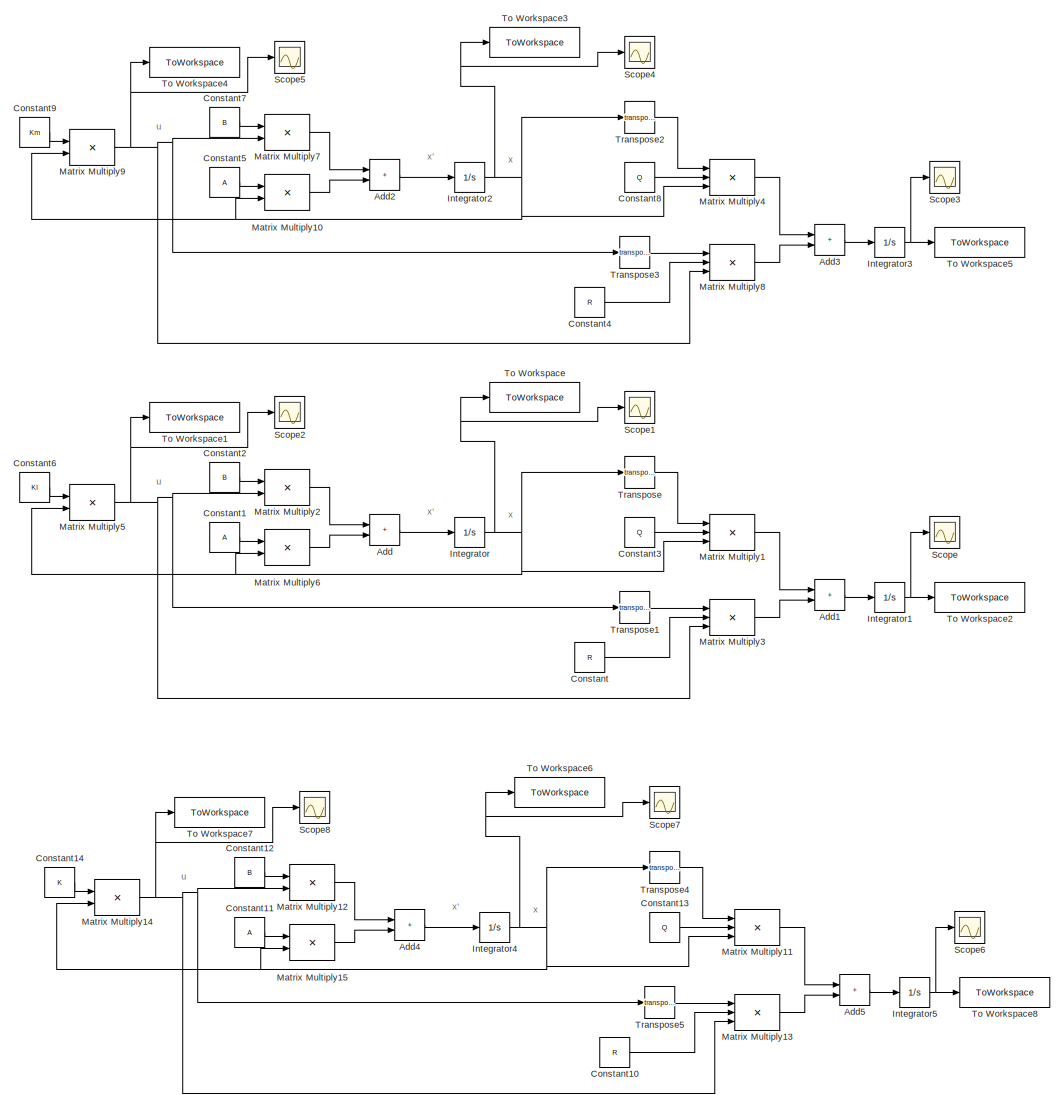
[diagram: root canvas - part 1/1, most of the canvas]
MODEL slx_1d7959213fd1
KIND model
CONFIG AbsTol = auto
CONFIG EnableMultiTasking = off
CONFIG FixedStep = 0.01
CONFIG MaxStep = auto
CONFIG MinStep = auto
CONFIG RelTol = 1e-3
CONFIG SampleTimeConstraint = Unconstrained
CONFIG SolverName = FixedStepAuto
CONFIG StartTime = 0.0
CONFIG StopTime = 10
BLOCK [Sum] Add
  IconShape = rectangular
BLOCK [Sum] Add1
  IconShape = rectangular
BLOCK [Sum] Add2
  IconShape = rectangular
BLOCK [Sum] Add3
  IconShape = rectangular
BLOCK [Sum] Add4
  IconShape = rectangular
BLOCK [Sum] Add5
  IconShape = rectangular
BLOCK [Constant] Constant
  Value = R
  VectorParams1D = off
BLOCK [Constant] Constant1
  Value = A
BLOCK [Constant] Constant10
  Value = R
  VectorParams1D = off
BLOCK [Constant] Constant11
  Value = A
BLOCK [Constant] Constant12
  Value = B
BLOCK [Constant] Constant13
  Value = Q
  VectorParams1D = off
BLOCK [Constant] Constant14
  Value = K
  VectorParams1D = off
BLOCK [Constant] Constant2
  Value = B
BLOCK [Constant] Constant3
  Value = Q
  VectorParams1D = off
BLOCK [Constant] Constant4
  Value = R
  VectorParams1D = off
BLOCK [Constant] Constant5
  Value = A
BLOCK [Constant] Constant6
  Value = Kl
  VectorParams1D = off
BLOCK [Constant] Constant7
  Value = B
BLOCK [Constant] Constant8
  Value = Q
  VectorParams1D = off
BLOCK [Constant] Constant9
  Value = Km
  VectorParams1D = off
BLOCK [Integrator] Integrator
  IgnoreLimit = on
  InitialCondition = x0
BLOCK [Integrator] Integrator1
BLOCK [Integrator] Integrator2
  IgnoreLimit = on
  InitialCondition = x0
BLOCK [Integrator] Integrator3
BLOCK [Integrator] Integrator4
  IgnoreLimit = on
  InitialCondition = x0
BLOCK [Integrator] Integrator5
BLOCK [Product] Matrix Multiply1
  Inputs = 3
  Multiplication = Matrix(*)
BLOCK [Product] Matrix Multiply10
  Multiplication = Matrix(*)
BLOCK [Product] Matrix Multiply11
  Inputs = 3
  Multiplication = Matrix(*)
BLOCK [Product] Matrix Multiply12
  Multiplication = Matrix(*)
BLOCK [Product] Matrix Multiply13
  Inputs = 3
  Multiplication = Matrix(*)
BLOCK [Product] Matrix Multiply14
  Multiplication = Matrix(*)
BLOCK [Product] Matrix Multiply15
  Multiplication = Matrix(*)
BLOCK [Product] Matrix Multiply2
  Multiplication = Matrix(*)
BLOCK [Product] Matrix Multiply3
  Inputs = 3
  Multiplication = Matrix(*)
BLOCK [Product] Matrix Multiply4
  Inputs = 3
  Multiplication = Matrix(*)
BLOCK [Product] Matrix Multiply5
  Multiplication = Matrix(*)
BLOCK [Product] Matrix Multiply6
  Multiplication = Matrix(*)
BLOCK [Product] Matrix Multiply7
  Multiplication = Matrix(*)
BLOCK [Product] Matrix Multiply8
  Inputs = 3
  Multiplication = Matrix(*)
BLOCK [Product] Matrix Multiply9
  Multiplication = Matrix(*)
BLOCK [Scope] Scope
  Floating = off
  NumInputPorts = 1
  ScopeSpecificationString = Simulink.scopes.TimeScopeBlockCfg('CurrentConfiguration', extmgr.ConfigurationSet(extmgr.Configuration('Core','General UI',true),extmgr.Configuration('Core','Source UI',true),extmgr.Configuration('Sources','WiredSimulink',true),extmgr.Configuration('Visuals','Time Domain',true,'SerializedDisplays',{struct('MinYLimReal','-1633.75865','MaxYLimReal','14703.82786','YLabelReal','','MinYLimMag','  0.000...<+1401ch>
BLOCK [Scope] Scope1
  Floating = off
  NumInputPorts = 1
  ScopeSpecificationString = Simulink.scopes.TimeScopeBlockCfg('CurrentConfiguration', extmgr.ConfigurationSet(extmgr.Configuration('Core','General UI',true),extmgr.Configuration('Core','Source UI',true),extmgr.Configuration('Sources','WiredSimulink',true,'DataLoggingVariableName','ScopeData1'),extmgr.Configuration('Visuals','Time Domain',true,'SerializedDisplays',{struct('MinYLimReal','-22.70667','MaxYLimReal','49.73672','YL...<+1447ch>
BLOCK [Scope] Scope2
  Floating = off
  NumInputPorts = 1
  ScopeSpecificationString = Simulink.scopes.TimeScopeBlockCfg('CurrentConfiguration', extmgr.ConfigurationSet(extmgr.Configuration('Core','General UI',true),extmgr.Configuration('Core','Source UI',true),extmgr.Configuration('Sources','WiredSimulink',true,'DataLoggingVariableName','ScopeData2'),extmgr.Configuration('Visuals','Time Domain',true,'SerializedDisplays',{struct('MinYLimReal','-99.42735','MaxYLimReal','272.25747','Y...<+1408ch>
BLOCK [Scope] Scope3
  Floating = off
  NumInputPorts = 1
  ScopeSpecificationString = Simulink.scopes.TimeScopeBlockCfg('CurrentConfiguration', extmgr.ConfigurationSet(extmgr.Configuration('Core','General UI',true),extmgr.Configuration('Core','Source UI',true),extmgr.Configuration('Sources','WiredSimulink',true,'DataLoggingVariableName','ScopeData3'),extmgr.Configuration('Visuals','Time Domain',true,'SerializedDisplays',{struct('MinYLimReal','-3902.68151','MaxYLimReal','35124.13362...<+1440ch>
BLOCK [Scope] Scope4
  Floating = off
  NumInputPorts = 1
  ScopeSpecificationString = Simulink.scopes.TimeScopeBlockCfg('CurrentConfiguration', extmgr.ConfigurationSet(extmgr.Configuration('Core','General UI',true),extmgr.Configuration('Core','Source UI',true),extmgr.Configuration('Sources','WiredSimulink',true,'DataLoggingVariableName','ScopeData4'),extmgr.Configuration('Visuals','Time Domain',true,'SerializedDisplays',{struct('MinYLimReal','-28.00482','MaxYLimReal','54.44058','YL...<+1451ch>
BLOCK [Scope] Scope5
  Floating = off
  NumInputPorts = 1
  ScopeSpecificationString = Simulink.scopes.TimeScopeBlockCfg('CurrentConfiguration', extmgr.ConfigurationSet(extmgr.Configuration('Core','General UI',true),extmgr.Configuration('Core','Source UI',true),extmgr.Configuration('Sources','WiredSimulink',true,'DataLoggingVariableName','ScopeData5'),extmgr.Configuration('Visuals','Time Domain',true,'SerializedDisplays',{struct('MinYLimReal','-156.56957','MaxYLimReal','537.10032','...<+1412ch>
BLOCK [Scope] Scope6
  Floating = off
  NumInputPorts = 1
  ScopeSpecificationString = Simulink.scopes.TimeScopeBlockCfg('CurrentConfiguration', extmgr.ConfigurationSet(extmgr.Configuration('Core','General UI',true),extmgr.Configuration('Core','Source UI',true),extmgr.Configuration('Sources','WiredSimulink',true,'DataLoggingVariableName','ScopeData6'),extmgr.Configuration('Visuals','Time Domain',true,'SerializedDisplays',{struct('MinYLimReal','-185.55268','MaxYLimReal','1669.97411',...<+1432ch>
BLOCK [Scope] Scope7
  Floating = off
  NumInputPorts = 1
  ScopeSpecificationString = Simulink.scopes.TimeScopeBlockCfg('CurrentConfiguration', extmgr.ConfigurationSet(extmgr.Configuration('Core','General UI',true),extmgr.Configuration('Core','Source UI',true),extmgr.Configuration('Sources','WiredSimulink',true,'DataLoggingVariableName','ScopeData7'),extmgr.Configuration('Visuals','Time Domain',true,'SerializedDisplays',{struct('MinYLimReal','-7.16643','MaxYLimReal','7.48885','YLab...<+1445ch>
BLOCK [Scope] Scope8
  Floating = off
  NumInputPorts = 1
  ScopeSpecificationString = Simulink.scopes.TimeScopeBlockCfg('CurrentConfiguration', extmgr.ConfigurationSet(extmgr.Configuration('Core','General UI',true),extmgr.Configuration('Core','Source UI',true),extmgr.Configuration('Sources','WiredSimulink',true,'DataLoggingVariableName','ScopeData8'),extmgr.Configuration('Visuals','Time Domain',true,'SerializedDisplays',{struct('MinYLimReal','-8.03678','MaxYLimReal','2.01188','YLab...<+1400ch>
BLOCK [ToWorkspace] To Workspace
  FixptAsFi = on
  MaxDataPoints = inf
  SampleTime = -1
  SaveFormat = Timeseries
  VariableName = xl
BLOCK [ToWorkspace] To Workspace1
  FixptAsFi = on
  MaxDataPoints = inf
  SampleTime = -1
  SaveFormat = Timeseries
  VariableName = ul
BLOCK [ToWorkspace] To Workspace2
  FixptAsFi = on
  MaxDataPoints = inf
  SampleTime = -1
  SaveFormat = Timeseries
  VariableName = Jl
BLOCK [ToWorkspace] To Workspace3
  FixptAsFi = on
  MaxDataPoints = inf
  SampleTime = -1
  Save2DSignal = 2-D array (concatenate along first dimension)
  SaveFormat = Timeseries
  VariableName = xm
BLOCK [ToWorkspace] To Workspace4
  FixptAsFi = on
  MaxDataPoints = inf
  SampleTime = -1
  SaveFormat = Timeseries
  VariableName = um
BLOCK [ToWorkspace] To Workspace5
  FixptAsFi = on
  MaxDataPoints = inf
  SampleTime = -1
  SaveFormat = Timeseries
  VariableName = Jm
BLOCK [ToWorkspace] To Workspace6
  FixptAsFi = on
  MaxDataPoints = inf
  SampleTime = -1
  SaveFormat = Timeseries
  VariableName = x
BLOCK [ToWorkspace] To Workspace7
  FixptAsFi = on
  MaxDataPoints = inf
  SampleTime = -1
  SaveFormat = Timeseries
  VariableName = u
BLOCK [ToWorkspace] To Workspace8
  FixptAsFi = on
  MaxDataPoints = inf
  SampleTime = -1
  SaveFormat = Timeseries
  VariableName = J
BLOCK [Math] Transpose
  Operator = transpose
BLOCK [Math] Transpose1
  Operator = transpose
BLOCK [Math] Transpose2
  Operator = transpose
BLOCK [Math] Transpose3
  Operator = transpose
BLOCK [Math] Transpose4
  Operator = transpose
BLOCK [Math] Transpose5
  Operator = transpose
ANNOTATION (root): u
ANNOTATION (root): x
ANNOTATION (root): x'
LINE Add1:1 -> Integrator1:1
LINE Add2:1 -> Integrator2:1
LINE Add3:1 -> Integrator3:1
LINE Add4:1 -> Integrator4:1
LINE Add5:1 -> Integrator5:1
LINE Add:1 -> Integrator:1
LINE Constant10:1 -> Matrix Multiply13:2
LINE Constant11:1 -> Matrix Multiply15:1
LINE Constant12:1 -> Matrix Multiply12:1
LINE Constant13:1 -> Matrix Multiply11:2
LINE Constant14:1 -> Matrix Multiply14:1
LINE Constant1:1 -> Matrix Multiply6:1
LINE Constant2:1 -> Matrix Multiply2:1
LINE Constant3:1 -> Matrix Multiply1:2
LINE Constant4:1 -> Matrix Multiply8:2
LINE Constant5:1 -> Matrix Multiply10:1
LINE Constant6:1 -> Matrix Multiply5:1
LINE Constant7:1 -> Matrix Multiply7:1
LINE Constant8:1 -> Matrix Multiply4:2
LINE Constant9:1 -> Matrix Multiply9:1
LINE Constant:1 -> Matrix Multiply3:2
NET Integrator1:1 -> Scope:1, To Workspace2:1
NET Integrator2:1 -> Matrix Multiply10:2, Matrix Multiply4:3, Matrix Multiply9:2, Scope4:1, To Workspace3:1, Transpose2:1
NET Integrator3:1 -> Scope3:1, To Workspace5:1
NET Integrator4:1 -> Matrix Multiply11:3, Matrix Multiply14:2, Matrix Multiply15:2, Scope7:1, To Workspace6:1, Transpose4:1
NET Integrator5:1 -> Scope6:1, To Workspace8:1
NET Integrator:1 -> Matrix Multiply1:3, Matrix Multiply5:2, Matrix Multiply6:2, Scope1:1, To Workspace:1, Transpose:1
LINE Matrix Multiply10:1 -> Add2:2
LINE Matrix Multiply11:1 -> Add5:1
LINE Matrix Multiply12:1 -> Add4:1
LINE Matrix Multiply13:1 -> Add5:2
NET Matrix Multiply14:1 -> Matrix Multiply12:2, Matrix Multiply13:3, Scope8:1, To Workspace7:1, Transpose5:1
LINE Matrix Multiply15:1 -> Add4:2
LINE Matrix Multiply1:1 -> Add1:1
LINE Matrix Multiply2:1 -> Add:1
LINE Matrix Multiply3:1 -> Add1:2
LINE Matrix Multiply4:1 -> Add3:1
NET Matrix Multiply5:1 -> Matrix Multiply2:2, Matrix Multiply3:3, Scope2:1, To Workspace1:1, Transpose1:1
LINE Matrix Multiply6:1 -> Add:2
LINE Matrix Multiply7:1 -> Add2:1
LINE Matrix Multiply8:1 -> Add3:2
NET Matrix Multiply9:1 -> Matrix Multiply7:2, Matrix Multiply8:3, Scope5:1, To Workspace4:1, Transpose3:1
LINE Transpose1:1 -> Matrix Multiply3:1
LINE Transpose2:1 -> Matrix Multiply4:1
LINE Transpose3:1 -> Matrix Multiply8:1
LINE Transpose4:1 -> Matrix Multiply11:1
LINE Transpose5:1 -> Matrix Multiply13:1
LINE Transpose:1 -> Matrix Multiply1:1
note: NET lines group one-source signal fan-out (src -> all destinations, sorted); 1:1 wires keep LINE
